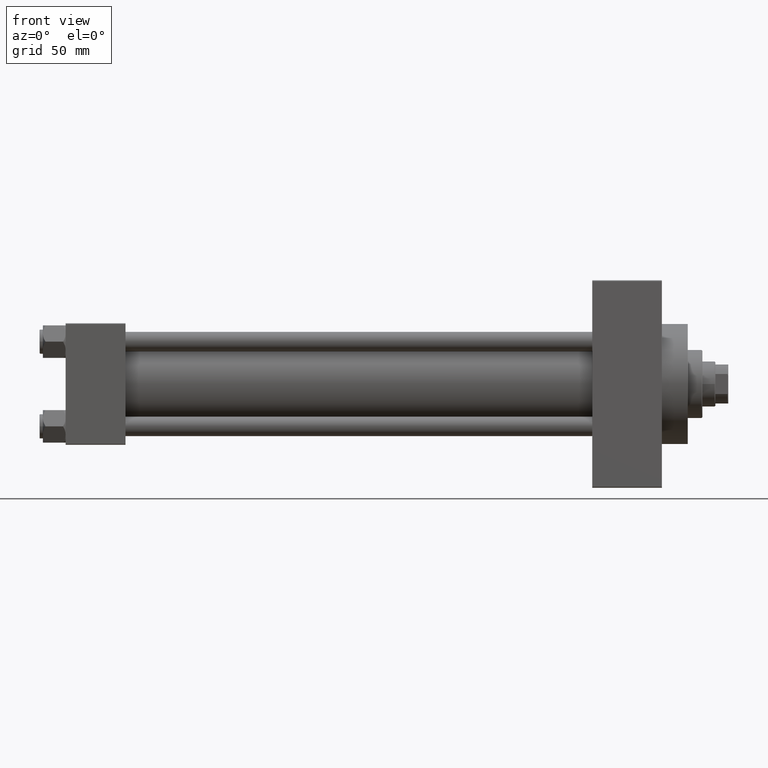
[diagram: clean part render]
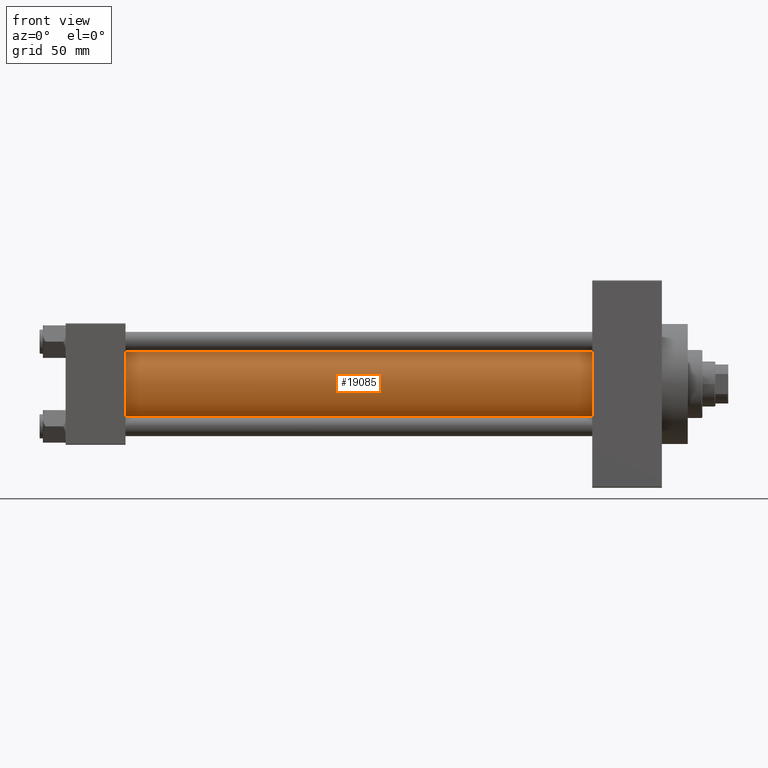
[diagram: same view with one face highlighted and labeled with its STEP entity id]
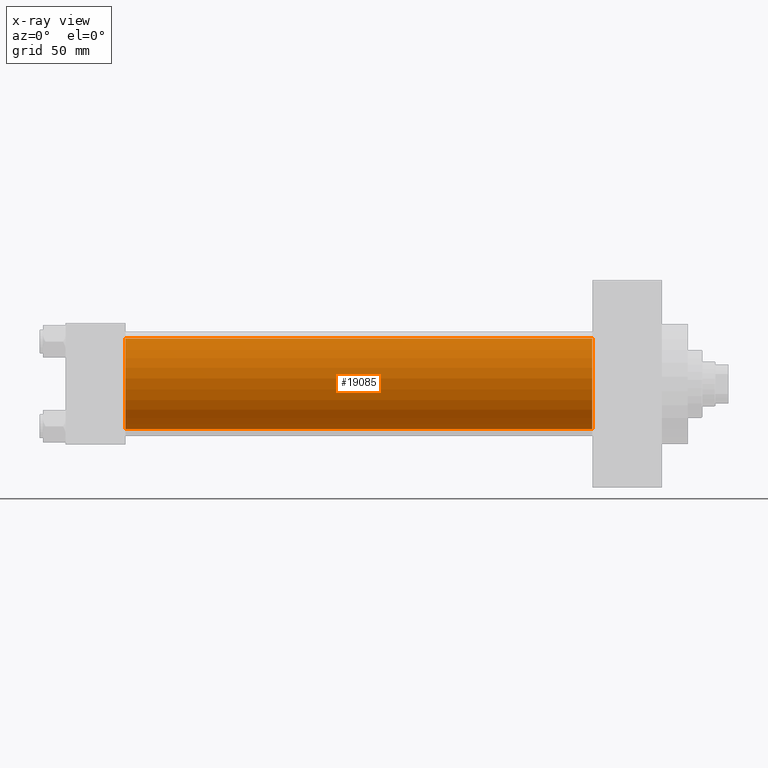
[diagram: x-ray of the same camera — body ghosted, the highlighted face saturated]
A machine part, front view. The second image highlights one B-rep face of the part: STEP entity #19085.
The next image is the same camera in x-ray: the body ghosted, the highlighted face saturated — about 0% of this face is hidden behind the body in this view.
In plain terms, the highlighted cylindrical surface (partial cylindrical patch) has radius 28 mm, axis along (-1, -0, -0).
Its self-contained STEP definition (entity closure, byte-faithful):
#912 = LINE ( 'NONE', #20603, #3476 ) ;
#2429 = LINE ( 'NONE', #36773, #10979 ) ;
#3476 = VECTOR ( 'NONE', #47260, 1000.000000000000000 ) ;
#3649 = CIRCLE ( 'NONE', #39457, 28.00000000000000000 ) ;
#4189 = EDGE_LOOP ( 'NONE', ( #8060, #33360, #12892, #32434 ) ) ;
#4487 = AXIS2_PLACEMENT_3D ( 'NONE', #34300, #18647, #7678 ) ;
#5112 = CARTESIAN_POINT ( 'NONE',  ( 36.99999999999997868, -2.602085213965210642E-15, 0.000000000000000000 ) ) ;
#6189 = EDGE_CURVE ( 'NONE', #13639, #20073, #912, .T. ) ;
#7678 = DIRECTION ( 'NONE',  ( 0.000000000000000000, 0.000000000000000000, 1.000000000000000000 ) ) ;
#8060 = ORIENTED_EDGE ( 'NONE', *, *, #40674, .F. ) ;
#10979 = VECTOR ( 'NONE', #40512, 1000.000000000000000 ) ;
#12892 = ORIENTED_EDGE ( 'NONE', *, *, #6189, .T. ) ;
#13639 = VERTEX_POINT ( 'NONE', #21136 ) ;
#14245 = CARTESIAN_POINT ( 'NONE',  ( 324.9999999999999432, 8.269258236473784371E-16, -28.00000000000000000 ) ) ;
#16540 = CARTESIAN_POINT ( 'NONE',  ( 324.9999999999999432, -2.602085213965210642E-15, 0.000000000000000000 ) ) ;
#18647 = DIRECTION ( 'NONE',  ( -1.000000000000000000, -0.000000000000000000, -0.000000000000000000 ) ) ;
#18751 = CARTESIAN_POINT ( 'NONE',  ( 36.99999999999997868, 8.269258236473784371E-16, -28.00000000000000000 ) ) ;
#19085 = ADVANCED_FACE ( 'NONE', ( #36594 ), #48807, .T. ) ;
#20073 = VERTEX_POINT ( 'NONE', #28089 ) ;
#20603 = CARTESIAN_POINT ( 'NONE',  ( 324.9999999999999432, -2.602085213965210642E-15, 28.00000000000000000 ) ) ;
#21136 = CARTESIAN_POINT ( 'NONE',  ( 324.9999999999999432, -2.602085213965210642E-15, 28.00000000000000000 ) ) ;
#24235 = EDGE_CURVE ( 'NONE', #20073, #26702, #33297, .T. ) ;
#24563 = AXIS2_PLACEMENT_3D ( 'NONE', #5112, #46706, #40388 ) ;
#26702 = VERTEX_POINT ( 'NONE', #18751 ) ;
#28089 = CARTESIAN_POINT ( 'NONE',  ( 36.99999999999997868, -2.602085213965210642E-15, 28.00000000000000000 ) ) ;
#29456 = DIRECTION ( 'NONE',  ( 0.000000000000000000, 0.000000000000000000, -1.000000000000000000 ) ) ;
#31712 = DIRECTION ( 'NONE',  ( 1.000000000000000000, 0.000000000000000000, 0.000000000000000000 ) ) ;
#32434 = ORIENTED_EDGE ( 'NONE', *, *, #24235, .T. ) ;
#33297 = CIRCLE ( 'NONE', #24563, 28.00000000000000000 ) ;
#33360 = ORIENTED_EDGE ( 'NONE', *, *, #36094, .F. ) ;
#34300 = CARTESIAN_POINT ( 'NONE',  ( 324.9999999999999432, -2.602085213965210642E-15, 0.000000000000000000 ) ) ;
#36094 = EDGE_CURVE ( 'NONE', #13639, #40366, #3649, .T. ) ;
#36594 = FACE_OUTER_BOUND ( 'NONE', #4189, .T. ) ;
#36773 = CARTESIAN_POINT ( 'NONE',  ( 324.9999999999999432, 8.269258236473784371E-16, -28.00000000000000000 ) ) ;
#39457 = AXIS2_PLACEMENT_3D ( 'NONE', #16540, #31712, #29456 ) ;
#40366 = VERTEX_POINT ( 'NONE', #14245 ) ;
#40388 = DIRECTION ( 'NONE',  ( 0.000000000000000000, 0.000000000000000000, 1.000000000000000000 ) ) ;
#40512 = DIRECTION ( 'NONE',  ( -1.000000000000000000, -0.000000000000000000, -0.000000000000000000 ) ) ;
#40674 = EDGE_CURVE ( 'NONE', #40366, #26702, #2429, .T. ) ;
#46706 = DIRECTION ( 'NONE',  ( 1.000000000000000000, -0.000000000000000000, 0.000000000000000000 ) ) ;
#47260 = DIRECTION ( 'NONE',  ( -1.000000000000000000, -0.000000000000000000, -0.000000000000000000 ) ) ;
#48807 = CYLINDRICAL_SURFACE ( 'NONE', #4487, 28.00000000000000000 ) ;